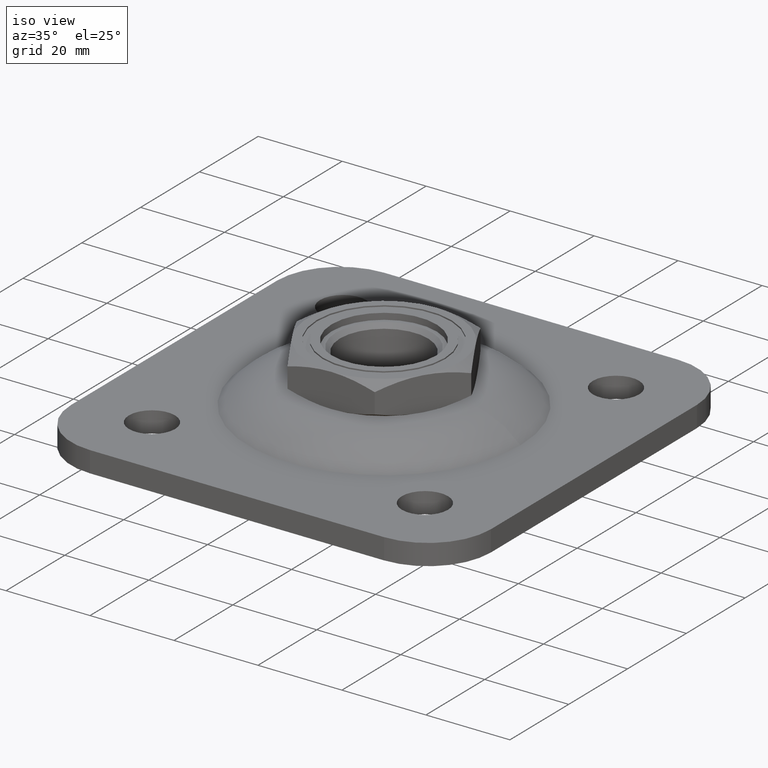
[diagram: clean part render]
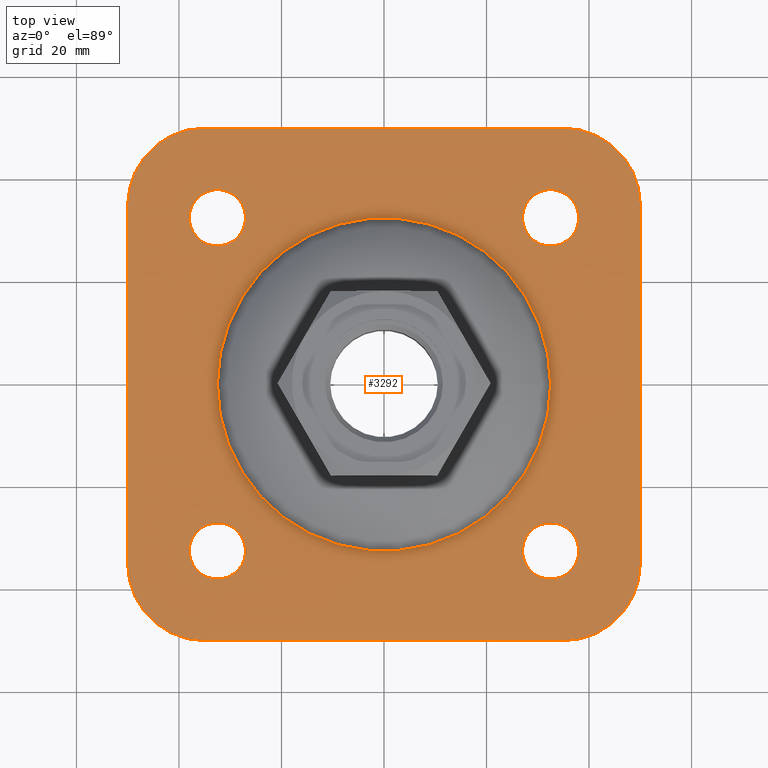
[diagram: tour spotlight — one face highlighted and labeled with its STEP entity id]
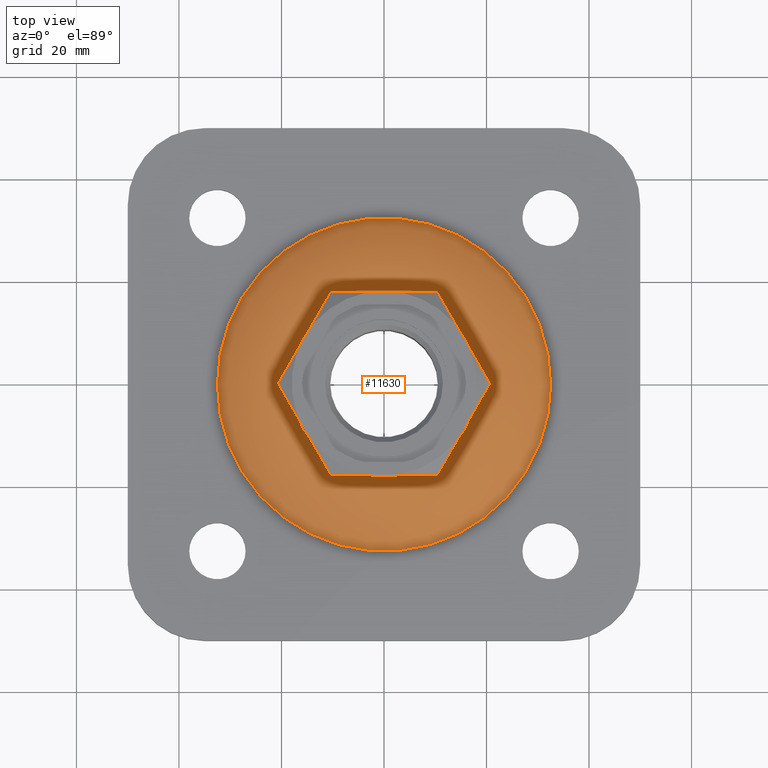
[diagram: tour spotlight — one face highlighted and labeled with its STEP entity id]
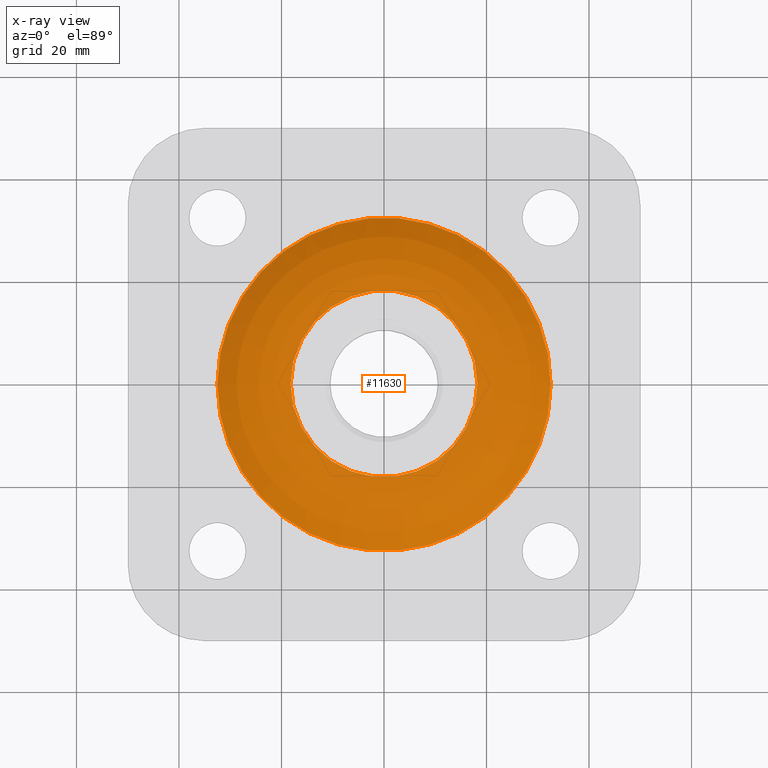
[diagram: x-ray of the same camera — body ghosted, this tour face saturated]
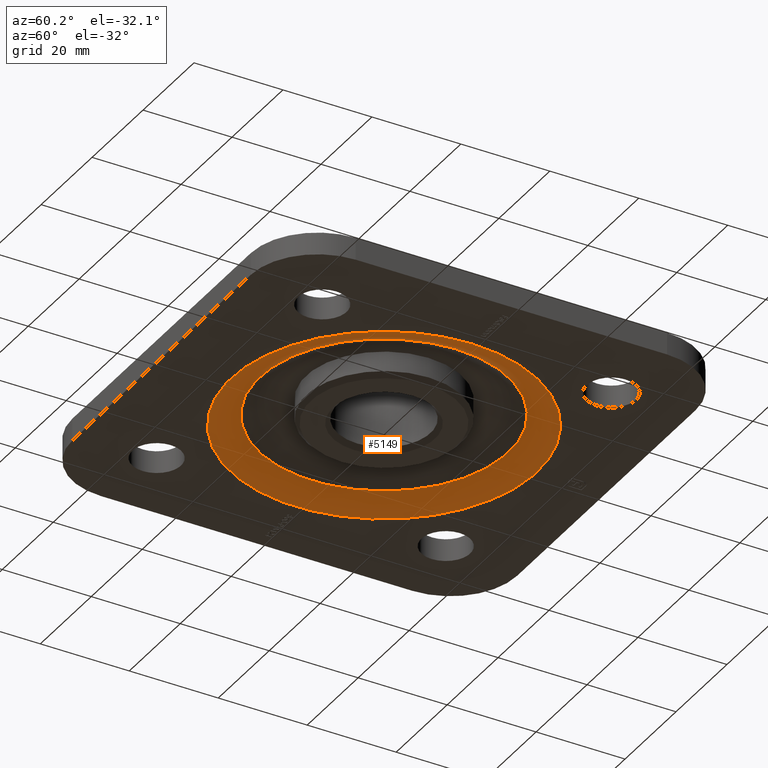
[diagram: tour spotlight — one face highlighted and labeled with its STEP entity id]
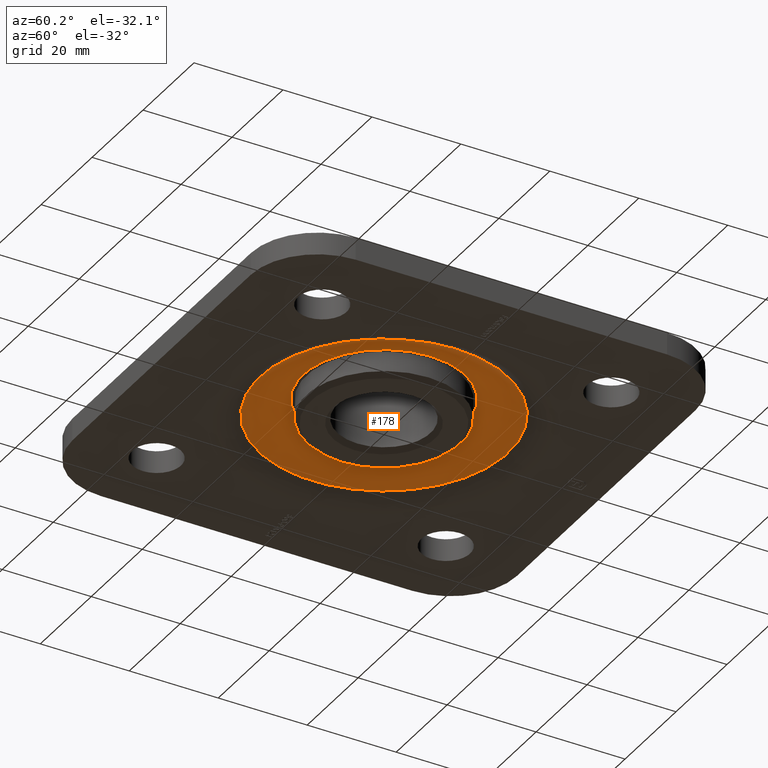
[diagram: tour spotlight — one face highlighted and labeled with its STEP entity id]
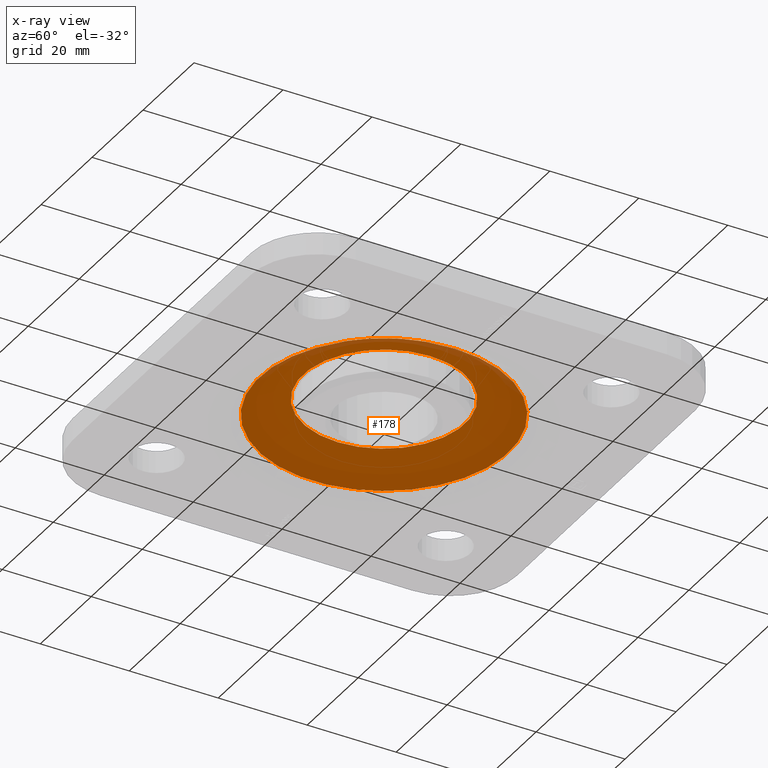
[diagram: x-ray of the same camera — body ghosted, this tour face saturated]
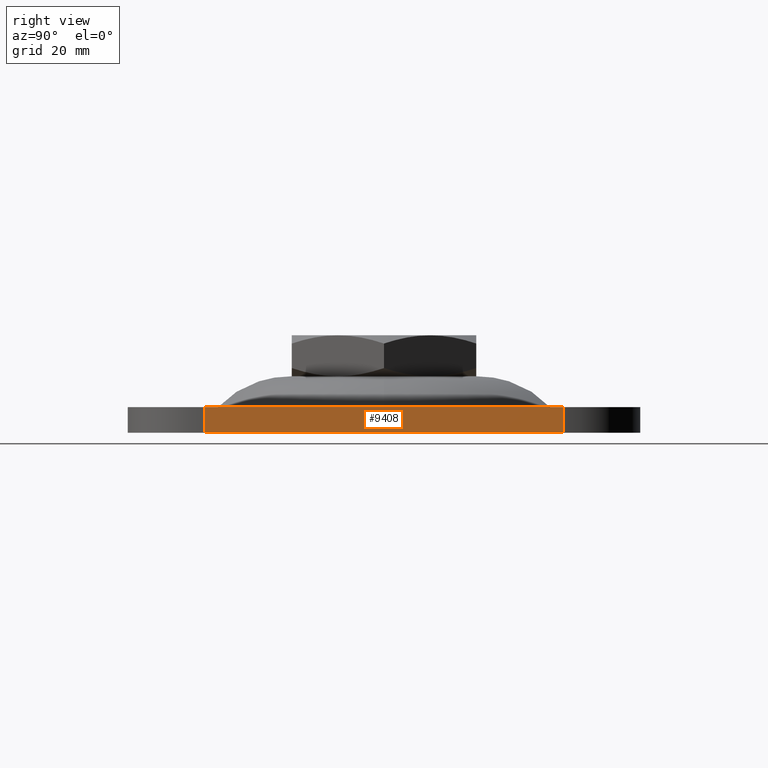
[diagram: tour spotlight — one face highlighted and labeled with its STEP entity id]
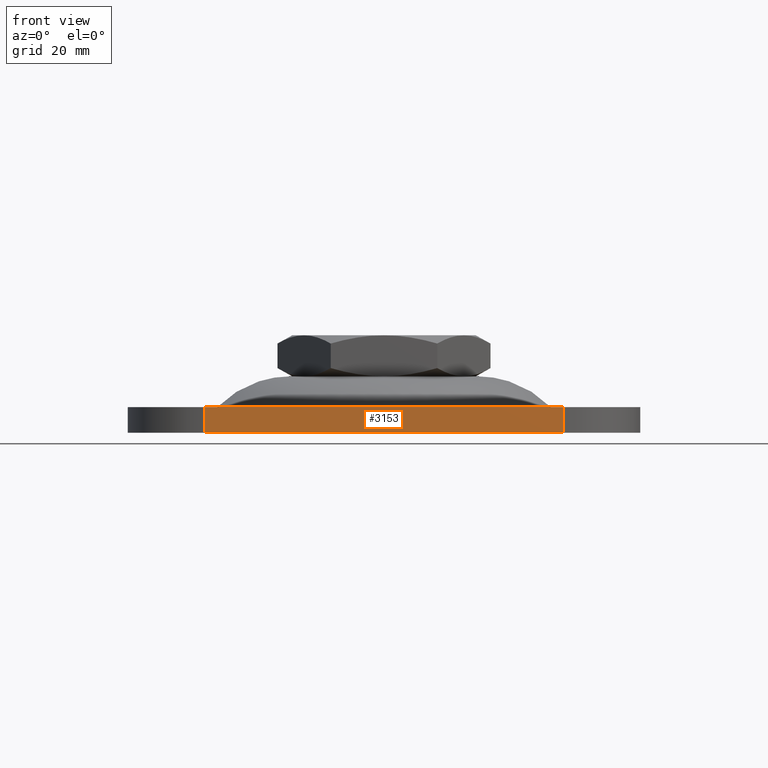
[diagram: tour spotlight — one face highlighted and labeled with its STEP entity id]
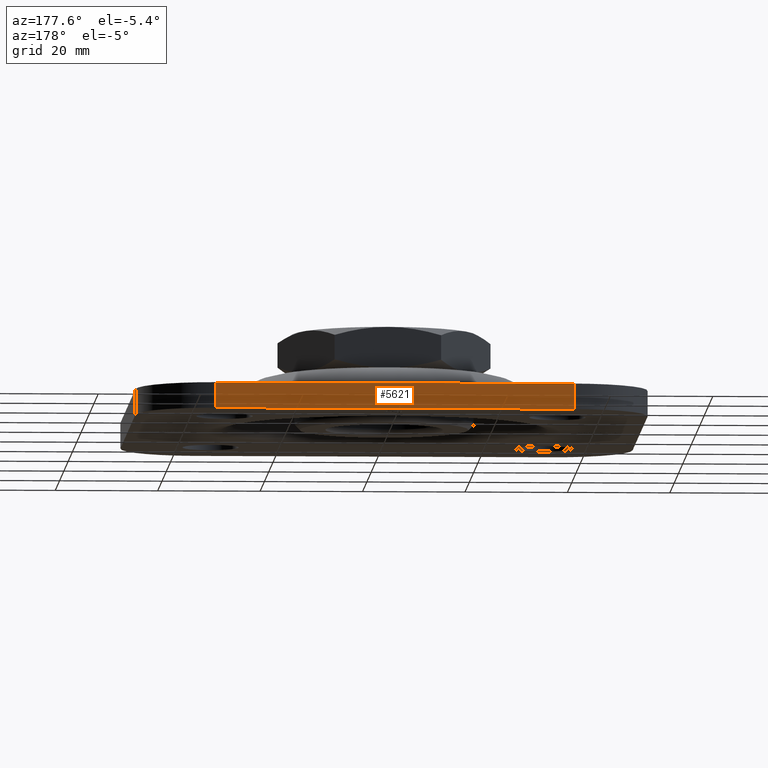
[diagram: tour spotlight — one face highlighted and labeled with its STEP entity id]
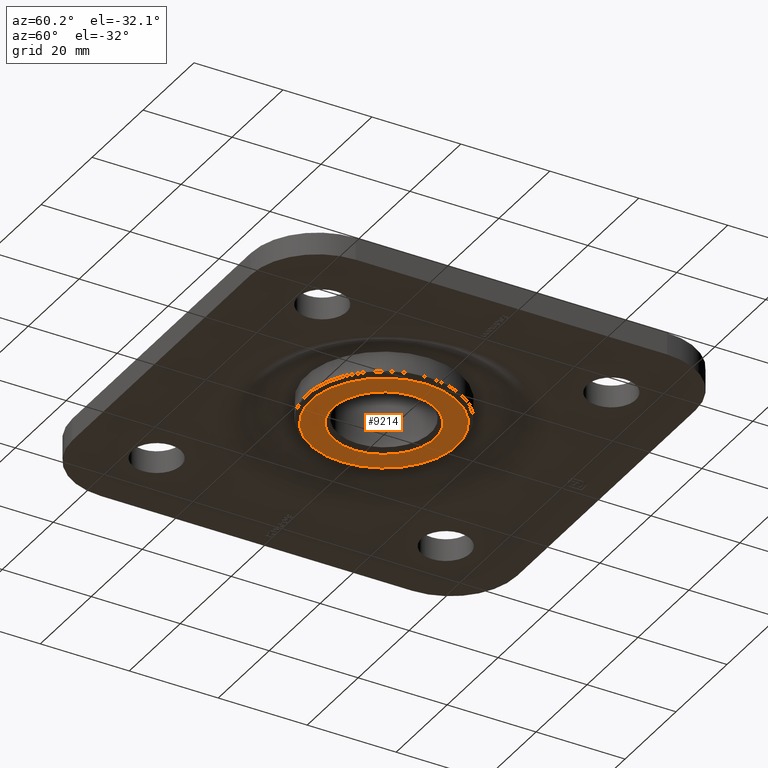
[diagram: tour spotlight — one face highlighted and labeled with its STEP entity id]
A machine part: a face-by-face anatomy tour. The part has 319 B-rep faces; the first image is the clean iso view, then the 8 largest visible faces are spotlighted one at a time (largest first), each with its STEP entity span.

Face 1 — top view, entity #3292. In plain terms, the highlighted planar face has unit normal (0, 0, -1).
Definition (entity closure, byte-faithful):
#75 = EDGE_CURVE ( 'NONE', #4549, #4549, #1802, .T. ) ;
#119 = VECTOR ( 'NONE', #4355, 1000.000000000000000 ) ;
#244 = EDGE_CURVE ( 'NONE', #5279, #5279, #9213, .T. ) ;
#252 = VERTEX_POINT ( 'NONE', #12864 ) ;
#276 = EDGE_CURVE ( 'NONE', #1771, #1771, #11217, .T. ) ;
#338 = DIRECTION ( 'NONE',  ( 1.000000000000000000, 0.000000000000000000, 0.000000000000000000 ) ) ;
#462 = VECTOR ( 'NONE', #2941, 1000.000000000000000 ) ;
#529 = DIRECTION ( 'NONE',  ( -1.000000000000000000, 0.000000000000000000, 0.000000000000000000 ) ) ;
#890 = ORIENTED_EDGE ( 'NONE', *, *, #14986, .F. ) ;
#895 = EDGE_LOOP ( 'NONE', ( #13231 ) ) ;
#986 = EDGE_CURVE ( 'NONE', #252, #2182, #9898, .T. ) ;
#1030 = CARTESIAN_POINT ( 'NONE',  ( 0.000000000000000000, 32.50000000000000000, 5.000000000000000888 ) ) ;
#1036 = CARTESIAN_POINT ( 'NONE',  ( 32.49999999999999289, 32.50000000000001421, 5.000000000000000888 ) ) ;
#1144 = VERTEX_POINT ( 'NONE', #10337 ) ;
#1362 = CARTESIAN_POINT ( 'NONE',  ( -34.99999999999999289, 50.00000000000000000, 5.000000000000004441 ) ) ;
#1424 = VECTOR ( 'NONE', #5876, 1000.000000000000000 ) ;
#1767 = VERTEX_POINT ( 'NONE', #13603 ) ;
#1771 = VERTEX_POINT ( 'NONE', #6801 ) ;
#1798 = ORIENTED_EDGE ( 'NONE', *, *, #14734, .T. ) ;
#1802 = CIRCLE ( 'NONE', #6157, 5.499999999999994671 ) ;
#2147 = CARTESIAN_POINT ( 'NONE',  ( -27.00000000000001066, -32.50000000000000711, 5.000000000000000888 ) ) ;
#2182 = VERTEX_POINT ( 'NONE', #12336 ) ;
#2326 = LINE ( 'NONE', #8844, #462 ) ;
#2337 = LINE ( 'NONE', #10567, #1424 ) ;
#2547 = EDGE_CURVE ( 'NONE', #7689, #7689, #8581, .T. ) ;
#2941 = DIRECTION ( 'NONE',  ( 2.081668171172168760E-16, 1.000000000000000000, 0.000000000000000000 ) ) ;
#3014 = FACE_BOUND ( 'NONE', #13723, .T. ) ;
#3028 = EDGE_LOOP ( 'NONE', ( #14045 ) ) ;
#3292 = ADVANCED_FACE ( 'NONE', ( #3014, #3928, #15211, #10959, #12064, #13009 ), #3352, .F. ) ;
#3352 = PLANE ( 'NONE',  #5663 ) ;
#3368 = ORIENTED_EDGE ( 'NONE', *, *, #7533, .T. ) ;
#3472 = CARTESIAN_POINT ( 'NONE',  ( 35.00000000000000000, -35.00000000000000000, 5.000000000000004441 ) ) ;
#3928 = FACE_BOUND ( 'NONE', #3028, .T. ) ;
#3997 = DIRECTION ( 'NONE',  ( -0.000000000000000000, -0.000000000000000000, 1.000000000000000000 ) ) ;
#4090 = CARTESIAN_POINT ( 'NONE',  ( -35.00000000000000711, -35.00000000000000000, 5.000000000000004441 ) ) ;
#4218 = VERTEX_POINT ( 'NONE', #4341 ) ;
#4341 = CARTESIAN_POINT ( 'NONE',  ( 50.00000000000000000, 35.00000000000000000, 5.000000000000004441 ) ) ;
#4355 = DIRECTION ( 'NONE',  ( 1.000000000000000000, 0.000000000000000000, 0.000000000000000000 ) ) ;
#4549 = VERTEX_POINT ( 'NONE', #8098 ) ;
#4591 = DIRECTION ( 'NONE',  ( -1.000000000000000000, 0.000000000000000000, -0.000000000000000000 ) ) ;
#4731 = EDGE_CURVE ( 'NONE', #5419, #6225, #4849, .T. ) ;
#4791 = CIRCLE ( 'NONE', #11795, 15.00000000000000000 ) ;
#4849 = CIRCLE ( 'NONE', #11088, 15.00000000000000000 ) ;
#4994 = EDGE_CURVE ( 'NONE', #1767, #4218, #13896, .T. ) ;
#5279 = VERTEX_POINT ( 'NONE', #6697 ) ;
#5414 = VERTEX_POINT ( 'NONE', #8384 ) ;
#5419 = VERTEX_POINT ( 'NONE', #1362 ) ;
#5465 = AXIS2_PLACEMENT_3D ( 'NONE', #4090, #12302, #529 ) ;
#5663 = AXIS2_PLACEMENT_3D ( 'NONE', #1030, #11494, #4591 ) ;
#5789 = DIRECTION ( 'NONE',  ( 0.000000000000000000, 0.000000000000000000, 1.000000000000000000 ) ) ;
#5876 = DIRECTION ( 'NONE',  ( 1.000000000000000000, 0.000000000000000000, 0.000000000000000000 ) ) ;
#5951 = ORIENTED_EDGE ( 'NONE', *, *, #4731, .T. ) ;
#6157 = AXIS2_PLACEMENT_3D ( 'NONE', #13900, #9246, #12658 ) ;
#6225 = VERTEX_POINT ( 'NONE', #9803 ) ;
#6533 = CARTESIAN_POINT ( 'NONE',  ( -32.50000000000000711, -32.50000000000000711, 5.000000000000000888 ) ) ;
#6588 = EDGE_LOOP ( 'NONE', ( #6690, #8560, #12017, #5951, #9264, #14867, #1798, #3368 ) ) ;
#6690 = ORIENTED_EDGE ( 'NONE', *, *, #4994, .T. ) ;
#6697 = CARTESIAN_POINT ( 'NONE',  ( 37.99999999999999289, -32.49999999999999289, 5.000000000000000888 ) ) ;
#6801 = CARTESIAN_POINT ( 'NONE',  ( 37.99999999999999289, 32.50000000000001421, 5.000000000000000888 ) ) ;
#7028 = DIRECTION ( 'NONE',  ( 0.000000000000000000, 0.000000000000000000, 1.000000000000000000 ) ) ;
#7119 = DIRECTION ( 'NONE',  ( -1.000000000000000000, 0.000000000000000000, 0.000000000000000000 ) ) ;
#7154 = AXIS2_PLACEMENT_3D ( 'NONE', #14006, #7028, #9505 ) ;
#7533 = EDGE_CURVE ( 'NONE', #1144, #1767, #4791, .T. ) ;
#7631 = CARTESIAN_POINT ( 'NONE',  ( 0.000000000000000000, 0.000000000000000000, 5.000000000000002665 ) ) ;
#7689 = VERTEX_POINT ( 'NONE', #11538 ) ;
#7775 = CARTESIAN_POINT ( 'NONE',  ( 50.00000000000000000, -3.469446951953614189E-15, 5.000000000000004441 ) ) ;
#7850 = CARTESIAN_POINT ( 'NONE',  ( 35.00000000000000000, 35.00000000000000000, 5.000000000000004441 ) ) ;
#8098 = CARTESIAN_POINT ( 'NONE',  ( -27.00000000000001421, 32.50000000000000711, 5.000000000000000888 ) ) ;
#8171 = AXIS2_PLACEMENT_3D ( 'NONE', #7850, #12494, #10223 ) ;
#8384 = CARTESIAN_POINT ( 'NONE',  ( 35.00000000000000000, 50.00000000000000000, 5.000000000000004441 ) ) ;
#8560 = ORIENTED_EDGE ( 'NONE', *, *, #11037, .T. ) ;
#8581 = CIRCLE ( 'NONE', #14277, 32.50000000000000000 ) ;
#8844 = CARTESIAN_POINT ( 'NONE',  ( -50.00000000000000000, 1.040834085586084257E-14, 5.000000000000004441 ) ) ;
#8968 = DIRECTION ( 'NONE',  ( 6.938893903907228378E-17, 1.000000000000000000, 0.000000000000000000 ) ) ;
#8984 = VERTEX_POINT ( 'NONE', #2147 ) ;
#9213 = CIRCLE ( 'NONE', #7154, 5.499999999999998224 ) ;
#9246 = DIRECTION ( 'NONE',  ( 0.000000000000000000, 0.000000000000000000, 1.000000000000000000 ) ) ;
#9264 = ORIENTED_EDGE ( 'NONE', *, *, #10861, .F. ) ;
#9449 = DIRECTION ( 'NONE',  ( 1.000000000000000000, 0.000000000000000000, 0.000000000000000000 ) ) ;
#9505 = DIRECTION ( 'NONE',  ( 1.000000000000000000, 0.000000000000000000, 0.000000000000000000 ) ) ;
#9803 = CARTESIAN_POINT ( 'NONE',  ( -49.99999999999999289, 35.00000000000000000, 5.000000000000004441 ) ) ;
#9898 = CIRCLE ( 'NONE', #5465, 15.00000000000000000 ) ;
#9903 = CIRCLE ( 'NONE', #8171, 15.00000000000000000 ) ;
#10193 = DIRECTION ( 'NONE',  ( 1.000000000000000000, 0.000000000000000000, 0.000000000000000000 ) ) ;
#10223 = DIRECTION ( 'NONE',  ( -1.000000000000000000, 0.000000000000000000, 0.000000000000000000 ) ) ;
#10337 = CARTESIAN_POINT ( 'NONE',  ( 35.00000000000000000, -50.00000000000000000, 5.000000000000004441 ) ) ;
#10546 = EDGE_CURVE ( 'NONE', #5419, #5414, #14901, .T. ) ;
#10556 = AXIS2_PLACEMENT_3D ( 'NONE', #6533, #11310, #10193 ) ;
#10567 = CARTESIAN_POINT ( 'NONE',  ( 0.000000000000000000, -50.00000000000000000, 5.000000000000004441 ) ) ;
#10571 = DIRECTION ( 'NONE',  ( -0.000000000000000000, -0.000000000000000000, 1.000000000000000000 ) ) ;
#10594 = DIRECTION ( 'NONE',  ( -0.000000000000000000, -0.000000000000000000, 1.000000000000000000 ) ) ;
#10743 = VECTOR ( 'NONE', #8968, 1000.000000000000000 ) ;
#10842 = EDGE_LOOP ( 'NONE', ( #13044 ) ) ;
#10861 = EDGE_CURVE ( 'NONE', #252, #6225, #2326, .T. ) ;
#10959 = FACE_BOUND ( 'NONE', #11425, .T. ) ;
#11037 = EDGE_CURVE ( 'NONE', #4218, #5414, #9903, .T. ) ;
#11088 = AXIS2_PLACEMENT_3D ( 'NONE', #14143, #10571, #7119 ) ;
#11217 = CIRCLE ( 'NONE', #11385, 5.499999999999998224 ) ;
#11310 = DIRECTION ( 'NONE',  ( 0.000000000000000000, 0.000000000000000000, 1.000000000000000000 ) ) ;
#11378 = CIRCLE ( 'NONE', #10556, 5.499999999999998224 ) ;
#11385 = AXIS2_PLACEMENT_3D ( 'NONE', #1036, #5789, #9449 ) ;
#11425 = EDGE_LOOP ( 'NONE', ( #13215 ) ) ;
#11494 = DIRECTION ( 'NONE',  ( 0.000000000000000000, 0.000000000000000000, -1.000000000000000000 ) ) ;
#11538 = CARTESIAN_POINT ( 'NONE',  ( 32.50000000000000000, 0.000000000000000000, 5.000000000000002665 ) ) ;
#11636 = CARTESIAN_POINT ( 'NONE',  ( 0.000000000000000000, 50.00000000000000000, 5.000000000000004441 ) ) ;
#11717 = DIRECTION ( 'NONE',  ( -1.000000000000000000, 0.000000000000000000, 0.000000000000000000 ) ) ;
#11795 = AXIS2_PLACEMENT_3D ( 'NONE', #3472, #10594, #11717 ) ;
#12017 = ORIENTED_EDGE ( 'NONE', *, *, #10546, .F. ) ;
#12064 = FACE_BOUND ( 'NONE', #895, .T. ) ;
#12302 = DIRECTION ( 'NONE',  ( -0.000000000000000000, -0.000000000000000000, 1.000000000000000000 ) ) ;
#12336 = CARTESIAN_POINT ( 'NONE',  ( -35.00000000000000711, -50.00000000000000000, 5.000000000000004441 ) ) ;
#12494 = DIRECTION ( 'NONE',  ( -0.000000000000000000, -0.000000000000000000, 1.000000000000000000 ) ) ;
#12658 = DIRECTION ( 'NONE',  ( 1.000000000000000000, 0.000000000000000000, 0.000000000000000000 ) ) ;
#12864 = CARTESIAN_POINT ( 'NONE',  ( -50.00000000000000711, -35.00000000000000000, 5.000000000000004441 ) ) ;
#13009 = FACE_OUTER_BOUND ( 'NONE', #6588, .T. ) ;
#13044 = ORIENTED_EDGE ( 'NONE', *, *, #276, .F. ) ;
#13215 = ORIENTED_EDGE ( 'NONE', *, *, #244, .F. ) ;
#13231 = ORIENTED_EDGE ( 'NONE', *, *, #2547, .F. ) ;
#13603 = CARTESIAN_POINT ( 'NONE',  ( 50.00000000000000000, -35.00000000000000000, 5.000000000000004441 ) ) ;
#13723 = EDGE_LOOP ( 'NONE', ( #890 ) ) ;
#13896 = LINE ( 'NONE', #7775, #10743 ) ;
#13900 = CARTESIAN_POINT ( 'NONE',  ( -32.50000000000000711, 32.50000000000000711, 5.000000000000000888 ) ) ;
#14006 = CARTESIAN_POINT ( 'NONE',  ( 32.49999999999999289, -32.49999999999999289, 5.000000000000000888 ) ) ;
#14045 = ORIENTED_EDGE ( 'NONE', *, *, #75, .F. ) ;
#14143 = CARTESIAN_POINT ( 'NONE',  ( -34.99999999999999289, 35.00000000000000000, 5.000000000000004441 ) ) ;
#14277 = AXIS2_PLACEMENT_3D ( 'NONE', #7631, #3997, #338 ) ;
#14734 = EDGE_CURVE ( 'NONE', #2182, #1144, #2337, .T. ) ;
#14867 = ORIENTED_EDGE ( 'NONE', *, *, #986, .T. ) ;
#14901 = LINE ( 'NONE', #11636, #119 ) ;
#14986 = EDGE_CURVE ( 'NONE', #8984, #8984, #11378, .T. ) ;
#15211 = FACE_BOUND ( 'NONE', #10842, .T. ) ;

Face 2 — top view, entity #11630. An x-ray twin of the same camera follows (body ghosted, this face saturated) — the face is partly hidden behind the body. In plain terms, the highlighted toroidal blend (fillet) surface has major radius 18.2171 mm and minor (blend) radius 20 mm.
Definition (entity closure, byte-faithful):
#338 = DIRECTION ( 'NONE',  ( 1.000000000000000000, 0.000000000000000000, 0.000000000000000000 ) ) ;
#348 = AXIS2_PLACEMENT_3D ( 'NONE', #10455, #10613, #15154 ) ;
#2547 = EDGE_CURVE ( 'NONE', #7689, #7689, #8581, .T. ) ;
#3943 = DIRECTION ( 'NONE',  ( 1.000000000000000000, 0.000000000000000000, 0.000000000000000000 ) ) ;
#3997 = DIRECTION ( 'NONE',  ( -0.000000000000000000, -0.000000000000000000, 1.000000000000000000 ) ) ;
#5078 = CARTESIAN_POINT ( 'NONE',  ( 0.000000000000000000, 0.000000000000000000, 11.00000000000000000 ) ) ;
#5492 = AXIS2_PLACEMENT_3D ( 'NONE', #5078, #6439, #3943 ) ;
#6439 = DIRECTION ( 'NONE',  ( -0.000000000000000000, -0.000000000000000000, 1.000000000000000000 ) ) ;
#7088 = ORIENTED_EDGE ( 'NONE', *, *, #10321, .F. ) ;
#7631 = CARTESIAN_POINT ( 'NONE',  ( 0.000000000000000000, 0.000000000000000000, 5.000000000000002665 ) ) ;
#7689 = VERTEX_POINT ( 'NONE', #11538 ) ;
#8581 = CIRCLE ( 'NONE', #14277, 32.50000000000000000 ) ;
#8791 = TOROIDAL_SURFACE ( 'NONE', #348, 18.21714314291430270, 20.00000000000000000 ) ;
#8808 = FACE_OUTER_BOUND ( 'NONE', #8960, .T. ) ;
#8960 = EDGE_LOOP ( 'NONE', ( #12564 ) ) ;
#10321 = EDGE_CURVE ( 'NONE', #15252, #15252, #13069, .T. ) ;
#10366 = CARTESIAN_POINT ( 'NONE',  ( 18.21714314291430270, 0.000000000000000000, 11.00000000000000000 ) ) ;
#10455 = CARTESIAN_POINT ( 'NONE',  ( 0.000000000000000000, 0.000000000000000000, -9.000000000000001776 ) ) ;
#10613 = DIRECTION ( 'NONE',  ( -0.000000000000000000, -0.000000000000000000, 1.000000000000000000 ) ) ;
#11538 = CARTESIAN_POINT ( 'NONE',  ( 32.50000000000000000, 0.000000000000000000, 5.000000000000002665 ) ) ;
#11630 = ADVANCED_FACE ( 'NONE', ( #12859, #8808 ), #8791, .T. ) ;
#12564 = ORIENTED_EDGE ( 'NONE', *, *, #2547, .T. ) ;
#12859 = FACE_OUTER_BOUND ( 'NONE', #15094, .T. ) ;
#13069 = CIRCLE ( 'NONE', #5492, 18.21714314291430270 ) ;
#14277 = AXIS2_PLACEMENT_3D ( 'NONE', #7631, #3997, #338 ) ;
#15094 = EDGE_LOOP ( 'NONE', ( #7088 ) ) ;
#15154 = DIRECTION ( 'NONE',  ( 1.000000000000000000, 0.000000000000000000, 0.000000000000000000 ) ) ;
#15252 = VERTEX_POINT ( 'NONE', #10366 ) ;

Face 3 — auxiliary view, entity #5149. In plain terms, the highlighted toroidal blend (fillet) surface has major radius 34.4652 mm and minor (blend) radius 10 mm.
Definition (entity closure, byte-faithful):
#66 = DIRECTION ( 'NONE',  ( 1.000000000000000000, 0.000000000000000000, 0.000000000000000000 ) ) ;
#114 = VERTEX_POINT ( 'NONE', #2095 ) ;
#375 = CARTESIAN_POINT ( 'NONE',  ( 0.000000000000000000, 0.000000000000000000, 10.00000000000000178 ) ) ;
#844 = CARTESIAN_POINT ( 'NONE',  ( 0.000000000000000000, 0.000000000000000000, 0.000000000000000000 ) ) ;
#1935 = ORIENTED_EDGE ( 'NONE', *, *, #8236, .F. ) ;
#2095 = CARTESIAN_POINT ( 'NONE',  ( 27.96598922847745428, 0.000000000000000000, 2.399999999999999467 ) ) ;
#3065 = DIRECTION ( 'NONE',  ( -0.000000000000000000, -0.000000000000000000, 1.000000000000000000 ) ) ;
#3528 = EDGE_LOOP ( 'NONE', ( #1935 ) ) ;
#4172 = AXIS2_PLACEMENT_3D ( 'NONE', #375, #13199, #6131 ) ;
#4911 = VERTEX_POINT ( 'NONE', #10316 ) ;
#5149 = ADVANCED_FACE ( 'NONE', ( #10569, #7422 ), #14982, .T. ) ;
#5182 = EDGE_LOOP ( 'NONE', ( #9197 ) ) ;
#6131 = DIRECTION ( 'NONE',  ( 1.000000000000000000, 0.000000000000000000, 0.000000000000000000 ) ) ;
#6972 = AXIS2_PLACEMENT_3D ( 'NONE', #11985, #14228, #66 ) ;
#7368 = CIRCLE ( 'NONE', #6972, 27.96598922847745428 ) ;
#7422 = FACE_OUTER_BOUND ( 'NONE', #5182, .T. ) ;
#7756 = AXIS2_PLACEMENT_3D ( 'NONE', #844, #3065, #13708 ) ;
#8236 = EDGE_CURVE ( 'NONE', #4911, #4911, #14037, .T. ) ;
#8413 = EDGE_CURVE ( 'NONE', #114, #114, #7368, .T. ) ;
#9197 = ORIENTED_EDGE ( 'NONE', *, *, #8413, .T. ) ;
#10316 = CARTESIAN_POINT ( 'NONE',  ( 34.46521995218622436, 0.000000000000000000, 0.000000000000000000 ) ) ;
#10569 = FACE_OUTER_BOUND ( 'NONE', #3528, .T. ) ;
#11985 = CARTESIAN_POINT ( 'NONE',  ( 0.000000000000000000, 0.000000000000000000, 2.399999999999999467 ) ) ;
#13199 = DIRECTION ( 'NONE',  ( -0.000000000000000000, -0.000000000000000000, 1.000000000000000000 ) ) ;
#13708 = DIRECTION ( 'NONE',  ( 1.000000000000000000, 0.000000000000000000, 0.000000000000000000 ) ) ;
#14037 = CIRCLE ( 'NONE', #7756, 34.46521995218622436 ) ;
#14228 = DIRECTION ( 'NONE',  ( -0.000000000000000000, -0.000000000000000000, 1.000000000000000000 ) ) ;
#14982 = TOROIDAL_SURFACE ( 'NONE', #4172, 34.46521995218622436, 10.00000000000000178 ) ;

Face 4 — auxiliary view, entity #178. An x-ray twin of the same camera follows (body ghosted, this face saturated) — the face is partly hidden behind the body. In plain terms, the highlighted toroidal blend (fillet) surface has major radius 18.2171 mm and minor (blend) radius 15 mm.
Definition (entity closure, byte-faithful):
#66 = DIRECTION ( 'NONE',  ( 1.000000000000000000, 0.000000000000000000, 0.000000000000000000 ) ) ;
#114 = VERTEX_POINT ( 'NONE', #2095 ) ;
#146 = FACE_OUTER_BOUND ( 'NONE', #14298, .T. ) ;
#178 = ADVANCED_FACE ( 'NONE', ( #3293, #146 ), #4945, .F. ) ;
#1237 = DIRECTION ( 'NONE',  ( 1.000000000000000000, 0.000000000000000000, 0.000000000000000000 ) ) ;
#1840 = DIRECTION ( 'NONE',  ( -0.000000000000000000, -0.000000000000000000, 1.000000000000000000 ) ) ;
#2095 = CARTESIAN_POINT ( 'NONE',  ( 27.96598922847745428, 0.000000000000000000, 2.399999999999999467 ) ) ;
#3021 = DIRECTION ( 'NONE',  ( 1.000000000000000000, 0.000000000000000000, 0.000000000000000000 ) ) ;
#3293 = FACE_OUTER_BOUND ( 'NONE', #13815, .T. ) ;
#3304 = CARTESIAN_POINT ( 'NONE',  ( 0.000000000000000000, 0.000000000000000000, -9.000000000000001776 ) ) ;
#4017 = ORIENTED_EDGE ( 'NONE', *, *, #6334, .T. ) ;
#4629 = CIRCLE ( 'NONE', #7064, 18.21714314291430270 ) ;
#4945 = TOROIDAL_SURFACE ( 'NONE', #10895, 18.21714314291430270, 15.00000000000000000 ) ;
#5352 = CARTESIAN_POINT ( 'NONE',  ( 0.000000000000000000, 0.000000000000000000, 5.999999999999998224 ) ) ;
#6334 = EDGE_CURVE ( 'NONE', #6576, #6576, #4629, .T. ) ;
#6576 = VERTEX_POINT ( 'NONE', #6906 ) ;
#6906 = CARTESIAN_POINT ( 'NONE',  ( 18.21714314291430270, 0.000000000000000000, 5.999999999999998224 ) ) ;
#6972 = AXIS2_PLACEMENT_3D ( 'NONE', #11985, #14228, #66 ) ;
#7064 = AXIS2_PLACEMENT_3D ( 'NONE', #5352, #1840, #3021 ) ;
#7368 = CIRCLE ( 'NONE', #6972, 27.96598922847745428 ) ;
#8266 = DIRECTION ( 'NONE',  ( -0.000000000000000000, -0.000000000000000000, 1.000000000000000000 ) ) ;
#8413 = EDGE_CURVE ( 'NONE', #114, #114, #7368, .T. ) ;
#10895 = AXIS2_PLACEMENT_3D ( 'NONE', #3304, #8266, #1237 ) ;
#11093 = ORIENTED_EDGE ( 'NONE', *, *, #8413, .F. ) ;
#11985 = CARTESIAN_POINT ( 'NONE',  ( 0.000000000000000000, 0.000000000000000000, 2.399999999999999467 ) ) ;
#13815 = EDGE_LOOP ( 'NONE', ( #11093 ) ) ;
#14228 = DIRECTION ( 'NONE',  ( -0.000000000000000000, -0.000000000000000000, 1.000000000000000000 ) ) ;
#14298 = EDGE_LOOP ( 'NONE', ( #4017 ) ) ;

Face 5 — right view, entity #9408. In plain terms, the highlighted planar face has unit normal (1, -0, 0).
Definition (entity closure, byte-faithful):
#438 = ORIENTED_EDGE ( 'NONE', *, *, #4025, .F. ) ;
#622 = VERTEX_POINT ( 'NONE', #12532 ) ;
#1097 = LINE ( 'NONE', #1263, #10142 ) ;
#1263 = CARTESIAN_POINT ( 'NONE',  ( 50.00000000000000000, 35.00000000000000000, 5.000000000000004441 ) ) ;
#1460 = DIRECTION ( 'NONE',  ( -6.938893903907228378E-17, -1.000000000000000000, 0.000000000000000000 ) ) ;
#1522 = CARTESIAN_POINT ( 'NONE',  ( 50.00000000000000000, 35.00000000000000000, 0.000000000000000000 ) ) ;
#1767 = VERTEX_POINT ( 'NONE', #13603 ) ;
#3326 = CARTESIAN_POINT ( 'NONE',  ( 50.00000000000000000, -3.469446951953614189E-15, 75.71067811865478347 ) ) ;
#3516 = VERTEX_POINT ( 'NONE', #1522 ) ;
#4025 = EDGE_CURVE ( 'NONE', #3516, #622, #10030, .T. ) ;
#4218 = VERTEX_POINT ( 'NONE', #4341 ) ;
#4341 = CARTESIAN_POINT ( 'NONE',  ( 50.00000000000000000, 35.00000000000000000, 5.000000000000004441 ) ) ;
#4641 = VECTOR ( 'NONE', #9295, 1000.000000000000000 ) ;
#4994 = EDGE_CURVE ( 'NONE', #1767, #4218, #13896, .T. ) ;
#5922 = EDGE_CURVE ( 'NONE', #1767, #622, #8896, .T. ) ;
#6074 = DIRECTION ( 'NONE',  ( -0.000000000000000000, -0.000000000000000000, 1.000000000000000000 ) ) ;
#6616 = FACE_OUTER_BOUND ( 'NONE', #7167, .T. ) ;
#7167 = EDGE_LOOP ( 'NONE', ( #438, #9850, #12060, #11765 ) ) ;
#7268 = VECTOR ( 'NONE', #1460, 1000.000000000000000 ) ;
#7775 = CARTESIAN_POINT ( 'NONE',  ( 50.00000000000000000, -3.469446951953614189E-15, 5.000000000000004441 ) ) ;
#7971 = AXIS2_PLACEMENT_3D ( 'NONE', #3326, #7986, #10448 ) ;
#7986 = DIRECTION ( 'NONE',  ( 1.000000000000000000, -6.938893903907228378E-17, 0.000000000000000000 ) ) ;
#8421 = EDGE_CURVE ( 'NONE', #3516, #4218, #1097, .T. ) ;
#8896 = LINE ( 'NONE', #9100, #4641 ) ;
#8968 = DIRECTION ( 'NONE',  ( 6.938893903907228378E-17, 1.000000000000000000, 0.000000000000000000 ) ) ;
#9100 = CARTESIAN_POINT ( 'NONE',  ( 50.00000000000000000, -35.00000000000000000, 75.71067811865478347 ) ) ;
#9295 = DIRECTION ( 'NONE',  ( 0.000000000000000000, 0.000000000000000000, -1.000000000000000000 ) ) ;
#9408 = ADVANCED_FACE ( 'NONE', ( #6616 ), #15037, .T. ) ;
#9850 = ORIENTED_EDGE ( 'NONE', *, *, #8421, .T. ) ;
#10030 = LINE ( 'NONE', #14379, #7268 ) ;
#10142 = VECTOR ( 'NONE', #6074, 1000.000000000000000 ) ;
#10448 = DIRECTION ( 'NONE',  ( 6.938893903907228378E-17, 1.000000000000000000, 0.000000000000000000 ) ) ;
#10743 = VECTOR ( 'NONE', #8968, 1000.000000000000000 ) ;
#11765 = ORIENTED_EDGE ( 'NONE', *, *, #5922, .T. ) ;
#12060 = ORIENTED_EDGE ( 'NONE', *, *, #4994, .F. ) ;
#12532 = CARTESIAN_POINT ( 'NONE',  ( 50.00000000000000000, -35.00000000000000000, 0.000000000000000000 ) ) ;
#13603 = CARTESIAN_POINT ( 'NONE',  ( 50.00000000000000000, -35.00000000000000000, 5.000000000000004441 ) ) ;
#13896 = LINE ( 'NONE', #7775, #10743 ) ;
#14379 = CARTESIAN_POINT ( 'NONE',  ( 50.00000000000000000, -3.469446951953614189E-15, 0.000000000000000000 ) ) ;
#15037 = PLANE ( 'NONE',  #7971 ) ;

Face 6 — front view, entity #3153. In plain terms, the highlighted planar face has unit normal (0, -1, -0).
Definition (entity closure, byte-faithful):
#608 = DIRECTION ( 'NONE',  ( 0.000000000000000000, 0.000000000000000000, -1.000000000000000000 ) ) ;
#795 = FACE_OUTER_BOUND ( 'NONE', #11581, .T. ) ;
#1144 = VERTEX_POINT ( 'NONE', #10337 ) ;
#1169 = EDGE_CURVE ( 'NONE', #2182, #14418, #3241, .T. ) ;
#1424 = VECTOR ( 'NONE', #5876, 1000.000000000000000 ) ;
#1799 = DIRECTION ( 'NONE',  ( 0.000000000000000000, 0.000000000000000000, -1.000000000000000000 ) ) ;
#2182 = VERTEX_POINT ( 'NONE', #12336 ) ;
#2283 = VECTOR ( 'NONE', #9604, 1000.000000000000000 ) ;
#2337 = LINE ( 'NONE', #10567, #1424 ) ;
#2863 = VECTOR ( 'NONE', #608, 1000.000000000000000 ) ;
#3036 = CARTESIAN_POINT ( 'NONE',  ( 0.000000000000000000, -50.00000000000000000, 75.71067811865478347 ) ) ;
#3153 = ADVANCED_FACE ( 'NONE', ( #795 ), #9815, .T. ) ;
#3241 = LINE ( 'NONE', #7695, #2863 ) ;
#3486 = CARTESIAN_POINT ( 'NONE',  ( 35.00000000000000000, -50.00000000000000000, 75.71067811865478347 ) ) ;
#3543 = EDGE_CURVE ( 'NONE', #9663, #14418, #8568, .T. ) ;
#4368 = VECTOR ( 'NONE', #14229, 1000.000000000000000 ) ;
#4937 = CARTESIAN_POINT ( 'NONE',  ( 0.000000000000000000, -50.00000000000000000, -0.000000000000000000 ) ) ;
#5113 = ORIENTED_EDGE ( 'NONE', *, *, #14734, .F. ) ;
#5876 = DIRECTION ( 'NONE',  ( 1.000000000000000000, 0.000000000000000000, 0.000000000000000000 ) ) ;
#6867 = CARTESIAN_POINT ( 'NONE',  ( -35.00000000000000711, -50.00000000000000000, 0.000000000000000000 ) ) ;
#7695 = CARTESIAN_POINT ( 'NONE',  ( -35.00000000000000711, -50.00000000000000000, 0.000000000000000000 ) ) ;
#7703 = ORIENTED_EDGE ( 'NONE', *, *, #1169, .T. ) ;
#8074 = LINE ( 'NONE', #3486, #4368 ) ;
#8568 = LINE ( 'NONE', #4937, #2283 ) ;
#9125 = AXIS2_PLACEMENT_3D ( 'NONE', #3036, #14859, #1799 ) ;
#9604 = DIRECTION ( 'NONE',  ( -1.000000000000000000, 0.000000000000000000, 0.000000000000000000 ) ) ;
#9663 = VERTEX_POINT ( 'NONE', #12033 ) ;
#9815 = PLANE ( 'NONE',  #9125 ) ;
#10337 = CARTESIAN_POINT ( 'NONE',  ( 35.00000000000000000, -50.00000000000000000, 5.000000000000004441 ) ) ;
#10567 = CARTESIAN_POINT ( 'NONE',  ( 0.000000000000000000, -50.00000000000000000, 5.000000000000004441 ) ) ;
#10606 = EDGE_CURVE ( 'NONE', #9663, #1144, #8074, .T. ) ;
#11581 = EDGE_LOOP ( 'NONE', ( #5113, #7703, #14848, #12361 ) ) ;
#12033 = CARTESIAN_POINT ( 'NONE',  ( 35.00000000000000000, -50.00000000000000000, -0.000000000000000000 ) ) ;
#12336 = CARTESIAN_POINT ( 'NONE',  ( -35.00000000000000711, -50.00000000000000000, 5.000000000000004441 ) ) ;
#12361 = ORIENTED_EDGE ( 'NONE', *, *, #10606, .T. ) ;
#14229 = DIRECTION ( 'NONE',  ( -0.000000000000000000, -0.000000000000000000, 1.000000000000000000 ) ) ;
#14418 = VERTEX_POINT ( 'NONE', #6867 ) ;
#14734 = EDGE_CURVE ( 'NONE', #2182, #1144, #2337, .T. ) ;
#14848 = ORIENTED_EDGE ( 'NONE', *, *, #3543, .F. ) ;
#14859 = DIRECTION ( 'NONE',  ( 0.000000000000000000, -1.000000000000000000, -0.000000000000000000 ) ) ;

Face 7 — auxiliary view, entity #5621. In plain terms, the highlighted planar face has unit normal (0, -1, -0).
Definition (entity closure, byte-faithful):
#43 = LINE ( 'NONE', #11147, #9112 ) ;
#119 = VECTOR ( 'NONE', #4355, 1000.000000000000000 ) ;
#133 = EDGE_LOOP ( 'NONE', ( #4320, #5083, #11094, #5263 ) ) ;
#1362 = CARTESIAN_POINT ( 'NONE',  ( -34.99999999999999289, 50.00000000000000000, 5.000000000000004441 ) ) ;
#1557 = VERTEX_POINT ( 'NONE', #1687 ) ;
#1687 = CARTESIAN_POINT ( 'NONE',  ( -34.99999999999999289, 50.00000000000000000, 0.000000000000000000 ) ) ;
#2496 = CARTESIAN_POINT ( 'NONE',  ( 35.00000000000000000, 50.00000000000000000, 0.000000000000000000 ) ) ;
#3111 = CARTESIAN_POINT ( 'NONE',  ( 0.000000000000000000, 50.00000000000000000, 0.000000000000000000 ) ) ;
#4320 = ORIENTED_EDGE ( 'NONE', *, *, #10546, .T. ) ;
#4355 = DIRECTION ( 'NONE',  ( 1.000000000000000000, 0.000000000000000000, 0.000000000000000000 ) ) ;
#4860 = EDGE_CURVE ( 'NONE', #5414, #9503, #43, .T. ) ;
#5083 = ORIENTED_EDGE ( 'NONE', *, *, #4860, .T. ) ;
#5263 = ORIENTED_EDGE ( 'NONE', *, *, #9009, .T. ) ;
#5323 = LINE ( 'NONE', #14144, #6079 ) ;
#5414 = VERTEX_POINT ( 'NONE', #8384 ) ;
#5419 = VERTEX_POINT ( 'NONE', #1362 ) ;
#5470 = DIRECTION ( 'NONE',  ( 0.000000000000000000, -1.000000000000000000, -0.000000000000000000 ) ) ;
#5621 = ADVANCED_FACE ( 'NONE', ( #12588 ), #14864, .F. ) ;
#6079 = VECTOR ( 'NONE', #15258, 1000.000000000000000 ) ;
#6658 = DIRECTION ( 'NONE',  ( 0.000000000000000000, 0.000000000000000000, -1.000000000000000000 ) ) ;
#7705 = LINE ( 'NONE', #3111, #7887 ) ;
#7887 = VECTOR ( 'NONE', #12571, 1000.000000000000000 ) ;
#8384 = CARTESIAN_POINT ( 'NONE',  ( 35.00000000000000000, 50.00000000000000000, 5.000000000000004441 ) ) ;
#9009 = EDGE_CURVE ( 'NONE', #1557, #5419, #5323, .T. ) ;
#9112 = VECTOR ( 'NONE', #13642, 1000.000000000000000 ) ;
#9503 = VERTEX_POINT ( 'NONE', #2496 ) ;
#10546 = EDGE_CURVE ( 'NONE', #5419, #5414, #14901, .T. ) ;
#11094 = ORIENTED_EDGE ( 'NONE', *, *, #15003, .T. ) ;
#11147 = CARTESIAN_POINT ( 'NONE',  ( 35.00000000000000000, 50.00000000000000000, 0.000000000000000000 ) ) ;
#11636 = CARTESIAN_POINT ( 'NONE',  ( 0.000000000000000000, 50.00000000000000000, 5.000000000000004441 ) ) ;
#12391 = CARTESIAN_POINT ( 'NONE',  ( 0.000000000000000000, 50.00000000000000000, 75.71067811865478347 ) ) ;
#12571 = DIRECTION ( 'NONE',  ( -1.000000000000000000, 0.000000000000000000, 0.000000000000000000 ) ) ;
#12588 = FACE_OUTER_BOUND ( 'NONE', #133, .T. ) ;
#13642 = DIRECTION ( 'NONE',  ( 0.000000000000000000, 0.000000000000000000, -1.000000000000000000 ) ) ;
#13990 = AXIS2_PLACEMENT_3D ( 'NONE', #12391, #5470, #6658 ) ;
#14144 = CARTESIAN_POINT ( 'NONE',  ( -34.99999999999999289, 50.00000000000000000, 75.71067811865478347 ) ) ;
#14864 = PLANE ( 'NONE',  #13990 ) ;
#14901 = LINE ( 'NONE', #11636, #119 ) ;
#15003 = EDGE_CURVE ( 'NONE', #9503, #1557, #7705, .T. ) ;
#15258 = DIRECTION ( 'NONE',  ( -0.000000000000000000, -0.000000000000000000, 1.000000000000000000 ) ) ;

Face 8 — auxiliary view, entity #9214. In plain terms, the highlighted planar face has unit normal (0, 0, -1).
Definition (entity closure, byte-faithful):
#79 = DIRECTION ( 'NONE',  ( -1.000000000000000000, 0.000000000000000000, 0.000000000000000000 ) ) ;
#567 = CIRCLE ( 'NONE', #3182, 16.50000000000001421 ) ;
#687 = CARTESIAN_POINT ( 'NONE',  ( 0.000000000000000000, 0.000000000000000000, 0.5000000000000000000 ) ) ;
#792 = DIRECTION ( 'NONE',  ( -1.000000000000000000, 0.000000000000000000, -0.000000000000000000 ) ) ;
#2418 = AXIS2_PLACEMENT_3D ( 'NONE', #687, #7931, #792 ) ;
#3058 = VERTEX_POINT ( 'NONE', #3288 ) ;
#3182 = AXIS2_PLACEMENT_3D ( 'NONE', #5927, #9592, #79 ) ;
#3288 = CARTESIAN_POINT ( 'NONE',  ( -11.49999999999999645, 0.000000000000000000, 0.5000000000000000000 ) ) ;
#3730 = CARTESIAN_POINT ( 'NONE',  ( 0.000000000000000000, 0.000000000000000000, 0.5000000000000000000 ) ) ;
#4399 = ORIENTED_EDGE ( 'NONE', *, *, #9575, .T. ) ;
#5014 = EDGE_CURVE ( 'NONE', #10826, #10826, #567, .T. ) ;
#5927 = CARTESIAN_POINT ( 'NONE',  ( 0.000000000000000000, 0.000000000000000000, 0.5000000000000000000 ) ) ;
#6045 = EDGE_LOOP ( 'NONE', ( #12553 ) ) ;
#6378 = AXIS2_PLACEMENT_3D ( 'NONE', #3730, #14177, #7049 ) ;
#7049 = DIRECTION ( 'NONE',  ( -1.000000000000000000, 0.000000000000000000, 0.000000000000000000 ) ) ;
#7343 = CIRCLE ( 'NONE', #6378, 11.49999999999999645 ) ;
#7824 = PLANE ( 'NONE',  #2418 ) ;
#7931 = DIRECTION ( 'NONE',  ( 0.000000000000000000, 0.000000000000000000, -1.000000000000000000 ) ) ;
#8472 = FACE_OUTER_BOUND ( 'NONE', #6045, .T. ) ;
#9214 = ADVANCED_FACE ( 'NONE', ( #11772, #8472 ), #7824, .T. ) ;
#9575 = EDGE_CURVE ( 'NONE', #3058, #3058, #7343, .T. ) ;
#9592 = DIRECTION ( 'NONE',  ( 0.000000000000000000, 0.000000000000000000, -1.000000000000000000 ) ) ;
#10826 = VERTEX_POINT ( 'NONE', #15051 ) ;
#11341 = EDGE_LOOP ( 'NONE', ( #4399 ) ) ;
#11772 = FACE_BOUND ( 'NONE', #11341, .T. ) ;
#12553 = ORIENTED_EDGE ( 'NONE', *, *, #5014, .T. ) ;
#14177 = DIRECTION ( 'NONE',  ( -0.000000000000000000, -0.000000000000000000, 1.000000000000000000 ) ) ;
#15051 = CARTESIAN_POINT ( 'NONE',  ( -16.50000000000001421, 0.000000000000000000, 0.5000000000000000000 ) ) ;